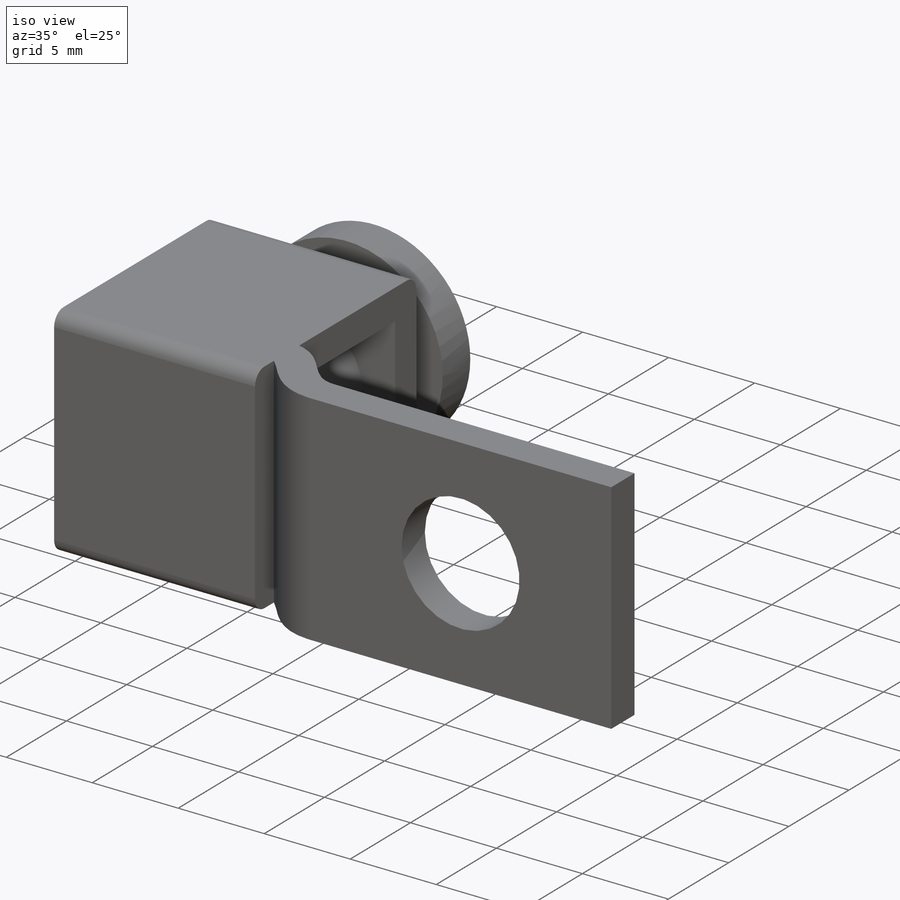
[diagram: iso view]
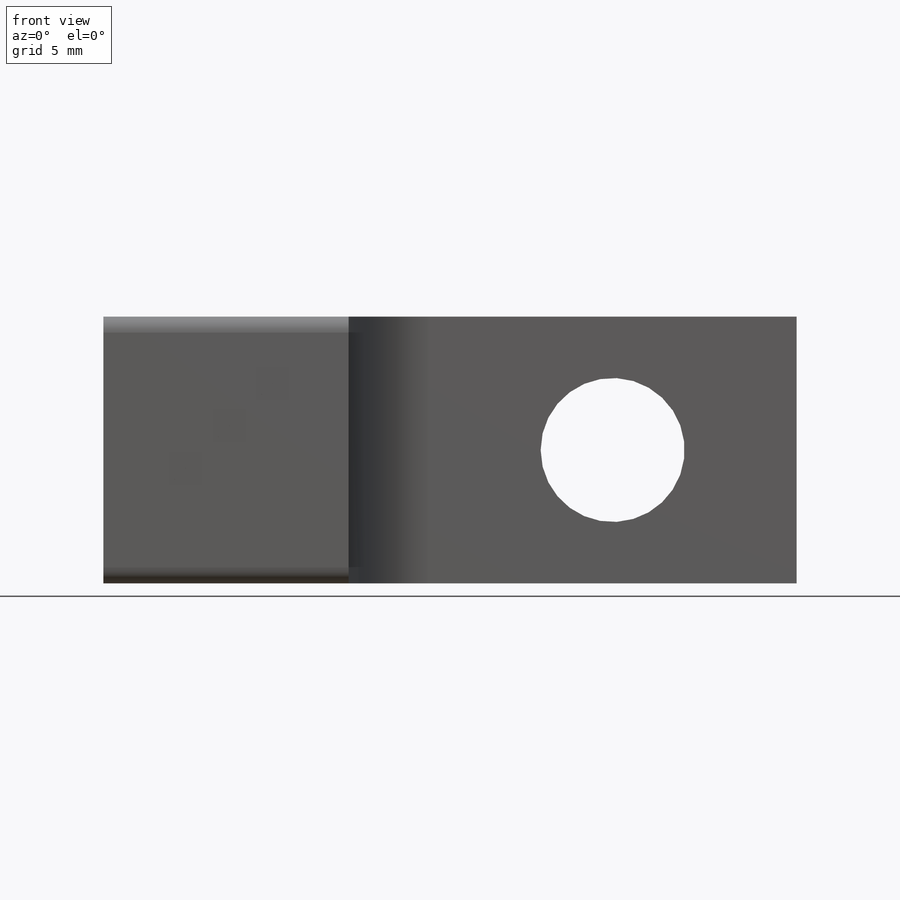
[diagram: front view]
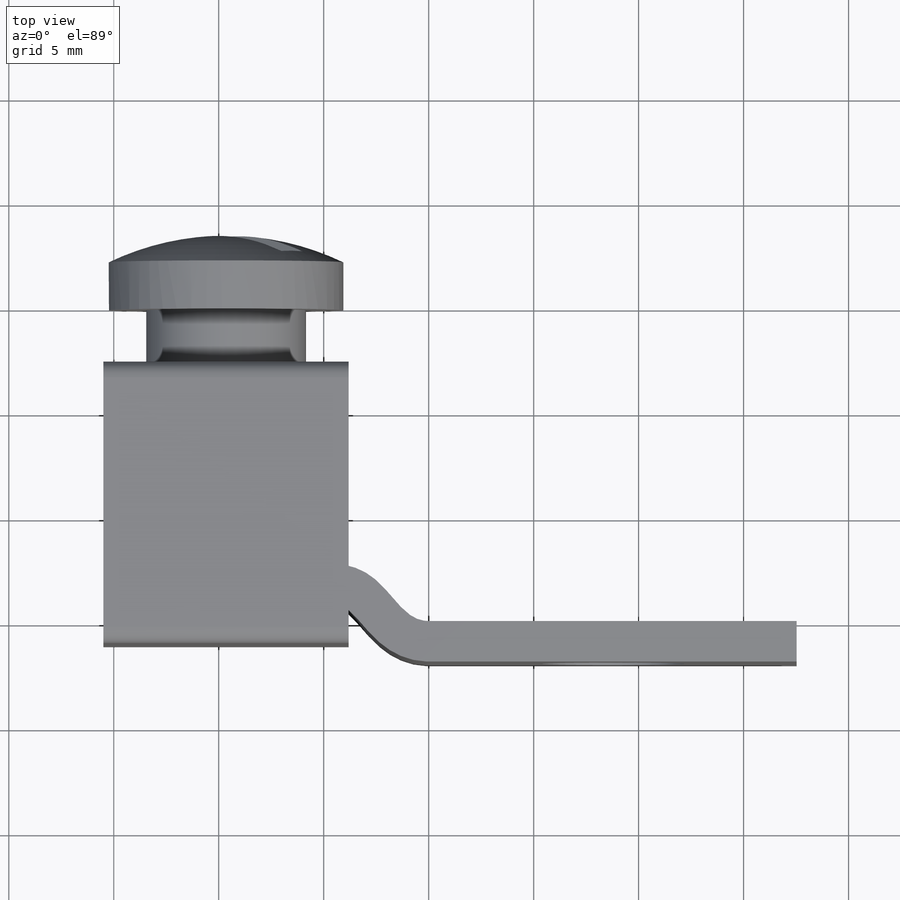
[diagram: top view]
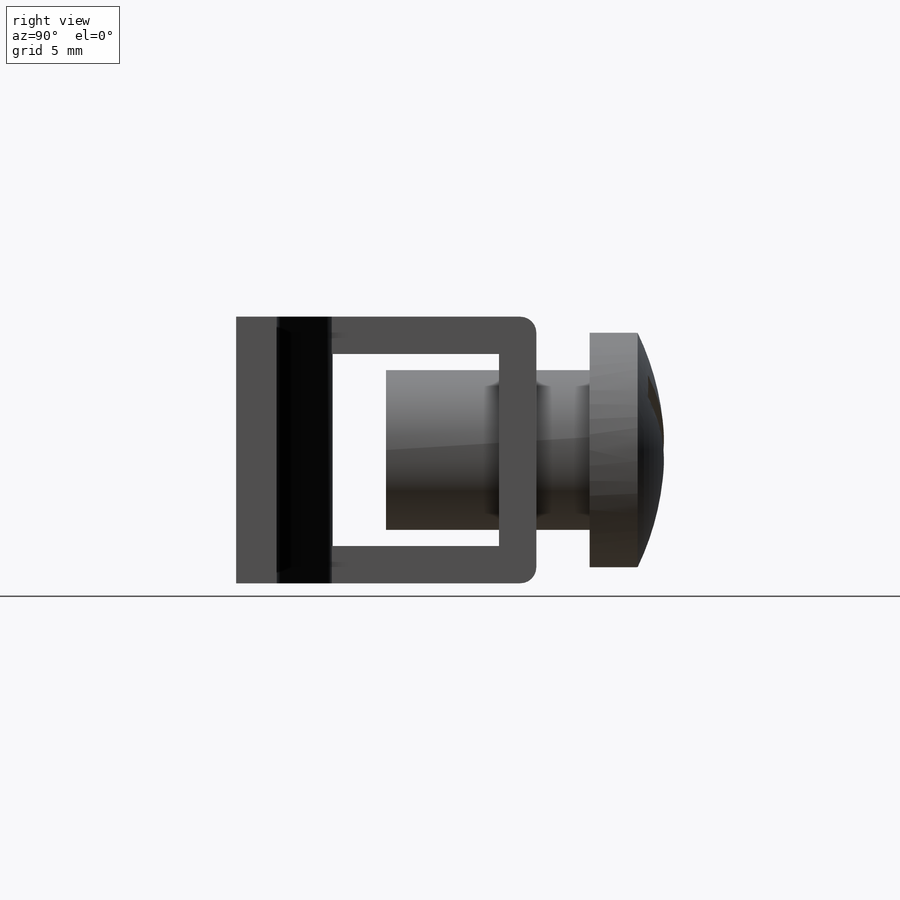
[diagram: right view]
SOLIDWORKS PART (.sldprt)
format: sldprt  version: not decoded by parser v0  size: 263,680 bytes
history: native  units: mm
features: sketch x6, cut_extrude x3, plane x2, material x1, extrude x1, revolve x1, fillet x1 (+12 scaffold rows collapsed)
feature tree (27):
  scaffold x12  (default folders/planes/origin — collapsed)
  material  "Material <not specified>"
  sketch  "Sketch1"  dims[c1.D1=17.526mm c1.D2=11.43mm c1.D3=2.667mm c1.D4=33.02mm c1.D5=1.3335mm c1.D6=1.905mm c2.D1=12.7mm c2.D5=1.9304mm c2.D6=2.54mm c2.D7=5.0mm]
  sketch  "Sketch2"  dims[D1=~6.93835mm]
  cut_extrude  "Cut-Extrude1"  Depth=2.54mm
  sketch  "Sketch3"  dims[c1.D1=~8.935352mm c1.D2=13.4112mm c2.D1=1.778mm]
  extrude  "Boss-Extrude1"  Depth=11.684mm
  sketch  "Sketch4"  dims[D1=~5.680986mm]
  cut_extrude  "Cut-Extrude2"  Depth=2.54mm
  plane  "Plane1"
  sketch  "Sketch5"  dims[c1.D1=~12.226879mm c1.D2=~2.947454mm c2.D1=3.81mm c2.D2=2.54mm c2.D3=2.54mm c2.D4=3.556mm c2.D5=11.176mm c2.D6=2.286mm]
  revolve  "Revolve1"  Angle=360deg
  plane  "Plane2"
  sketch  "Sketch6"  dims[D1=~4.376105mm D2=~0.714659mm]
  cut_extrude  "Cut-Extrude3"  Depth=2.54mm
  fillet  "Fillet1"  Radius=0.762mm
decode coverage: 12 of 12 modeling features carry decoded parameters
note: ~ marks probable driven/reference dimensions
note: suppression state not decoded; provenance and decode notes live in map.json
